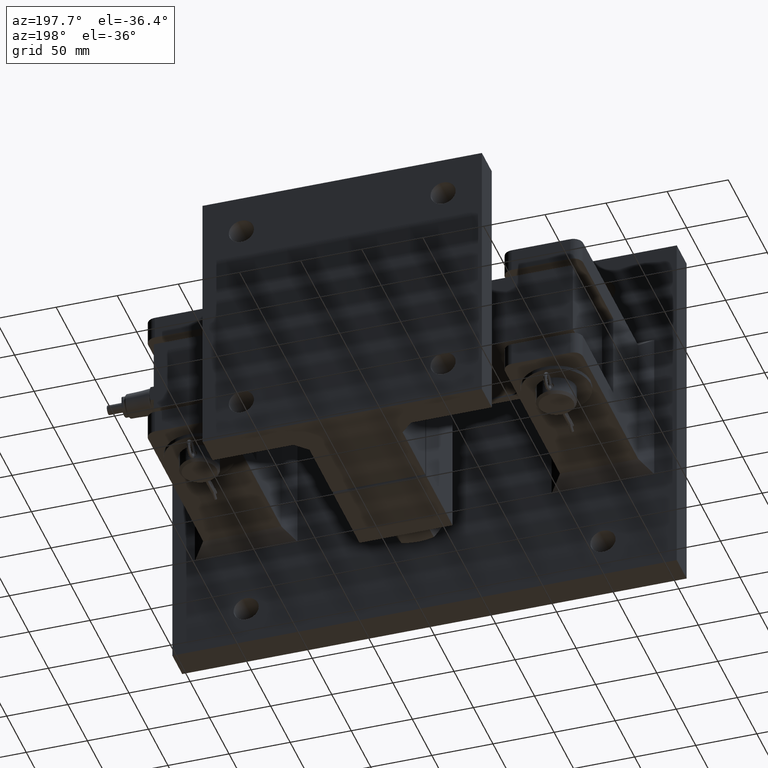
[diagram: clean part render]
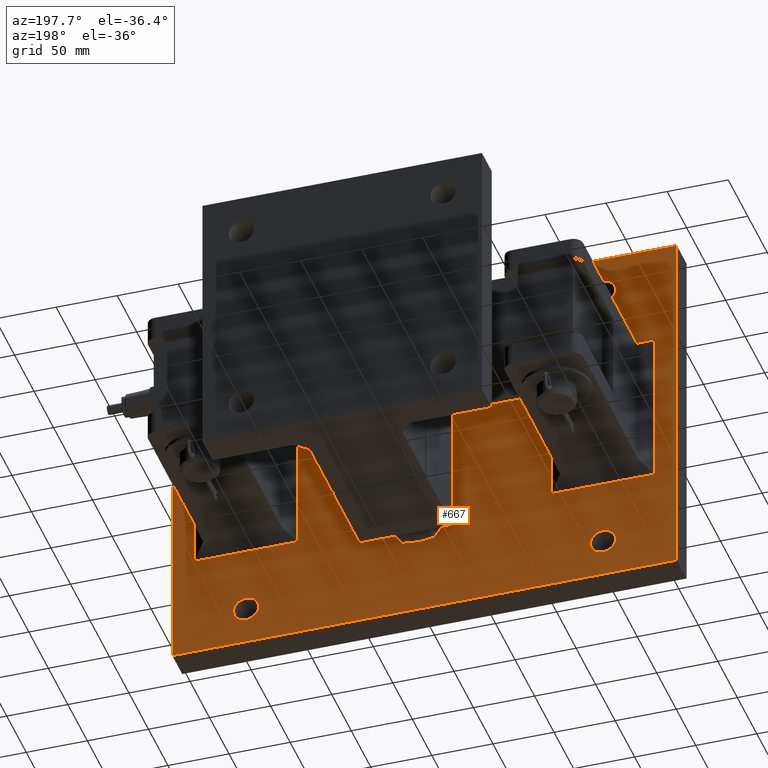
[diagram: same view with one face highlighted and labeled with its STEP entity id]
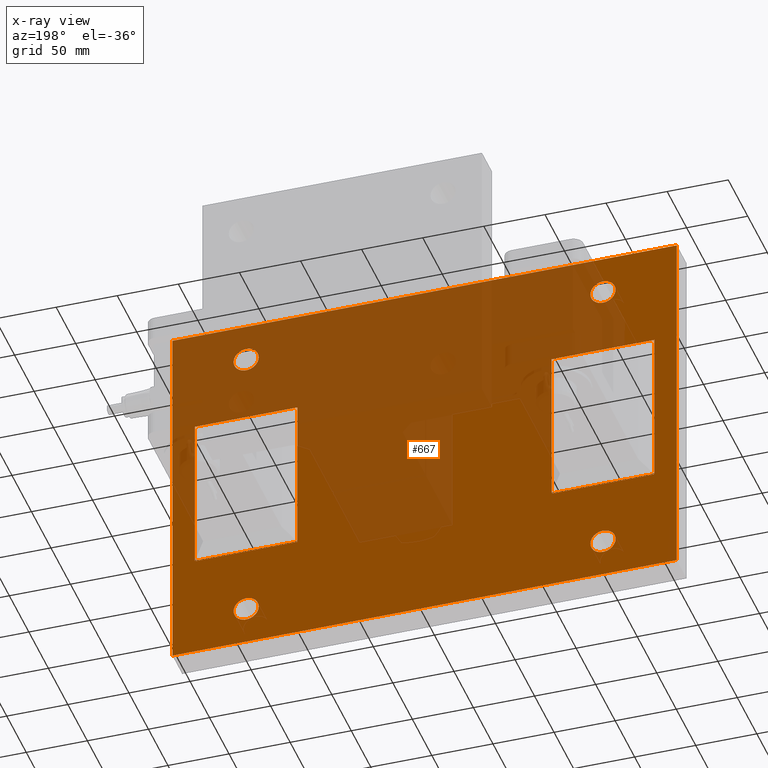
[diagram: x-ray of the same camera — body ghosted, the highlighted face saturated]
A machine part, auxiliary view. The second image highlights one B-rep face of the part: STEP entity #667.
The next image is the same camera in x-ray: the body ghosted, the highlighted face saturated — about 50% of this face is hidden behind the body in this view.
In plain terms, the highlighted planar face has unit normal (0, 1, 0).
Its self-contained STEP definition (entity closure, byte-faithful):
#95 = DIRECTION ( 'NONE',  ( 0.000000000000000000, 0.000000000000000000, -1.000000000000000000 ) ) ;
#103 = VECTOR ( 'NONE', #10947, 1000.000000000000000 ) ;
#149 = CARTESIAN_POINT ( 'NONE',  ( 206.4000000000000057, 25.39999999999999858, -152.4000000000000057 ) ) ;
#224 = ORIENTED_EDGE ( 'NONE', *, *, #10014, .F. ) ;
#237 = VECTOR ( 'NONE', #6885, 1000.000000000000000 ) ;
#295 = DIRECTION ( 'NONE',  ( -1.000000000000000000, -3.368395098984090196E-16, 0.000000000000000000 ) ) ;
#377 = DIRECTION ( 'NONE',  ( -0.000000000000000000, -0.000000000000000000, -1.000000000000000000 ) ) ;
#380 = EDGE_CURVE ( 'NONE', #5379, #2966, #6100, .T. ) ;
#583 = VERTEX_POINT ( 'NONE', #4763 ) ;
#621 = DIRECTION ( 'NONE',  ( -1.845450506358305572E-16, 1.000000000000000000, 0.000000000000000000 ) ) ;
#667 = ADVANCED_FACE ( 'NONE', ( #6654, #5704, #5757, #10892, #10775, #8241, #7492 ), #9128, .T. ) ;
#707 = ORIENTED_EDGE ( 'NONE', *, *, #3075, .T. ) ;
#738 = ORIENTED_EDGE ( 'NONE', *, *, #4347, .T. ) ;
#794 = AXIS2_PLACEMENT_3D ( 'NONE', #10143, #1822, #3394 ) ;
#796 = ORIENTED_EDGE ( 'NONE', *, *, #7504, .T. ) ;
#887 = CARTESIAN_POINT ( 'NONE',  ( 0.000000000000000000, 25.39999999999999858, 152.4000000000000057 ) ) ;
#1104 = CARTESIAN_POINT ( 'NONE',  ( -206.4000000000000057, 25.39999999999999858, -152.4000000000000057 ) ) ;
#1457 = DIRECTION ( 'NONE',  ( -1.000000000000000000, -3.368395098984090196E-16, 0.000000000000000000 ) ) ;
#1470 = AXIS2_PLACEMENT_3D ( 'NONE', #7460, #9101, #5776 ) ;
#1480 = VERTEX_POINT ( 'NONE', #5811 ) ;
#1692 = VERTEX_POINT ( 'NONE', #2502 ) ;
#1804 = VERTEX_POINT ( 'NONE', #10535 ) ;
#1822 = DIRECTION ( 'NONE',  ( -1.845450506358305572E-16, 1.000000000000000000, 0.000000000000000000 ) ) ;
#1845 = DIRECTION ( 'NONE',  ( 0.000000000000000000, 0.000000000000000000, 1.000000000000000000 ) ) ;
#1866 = EDGE_CURVE ( 'NONE', #8576, #1804, #6854, .T. ) ;
#2045 = VERTEX_POINT ( 'NONE', #10685 ) ;
#2078 = VERTEX_POINT ( 'NONE', #3764 ) ;
#2264 = ORIENTED_EDGE ( 'NONE', *, *, #8739, .F. ) ;
#2321 = VERTEX_POINT ( 'NONE', #10393 ) ;
#2502 = CARTESIAN_POINT ( 'NONE',  ( 135.7000000000000171, 25.40000000000002345, 120.6499999999999915 ) ) ;
#2594 = EDGE_LOOP ( 'NONE', ( #6322, #9320 ) ) ;
#2662 = VERTEX_POINT ( 'NONE', #10250 ) ;
#2663 = VERTEX_POINT ( 'NONE', #5018 ) ;
#2718 = CARTESIAN_POINT ( 'NONE',  ( 103.9999999999999432, 25.39999999999999858, -65.00000000000000000 ) ) ;
#2758 = CIRCLE ( 'NONE', #10650, 10.30000000000000426 ) ;
#2769 = DIRECTION ( 'NONE',  ( -1.000000000000000000, 0.000000000000000000, 0.000000000000000000 ) ) ;
#2787 = EDGE_CURVE ( 'NONE', #9227, #2078, #8977, .T. ) ;
#2834 = CARTESIAN_POINT ( 'NONE',  ( -145.9999999999999716, 25.39999999999997016, 120.6500000000000341 ) ) ;
#2862 = EDGE_LOOP ( 'NONE', ( #6244, #738, #8975, #3558 ) ) ;
#2910 = VECTOR ( 'NONE', #7000, 1000.000000000000000 ) ;
#2966 = VERTEX_POINT ( 'NONE', #6418 ) ;
#2967 = ORIENTED_EDGE ( 'NONE', *, *, #7095, .T. ) ;
#3061 = EDGE_LOOP ( 'NONE', ( #9724, #224, #8998, #796 ) ) ;
#3071 = CARTESIAN_POINT ( 'NONE',  ( 0.000000000000000000, 25.39999999999999858, -65.00000000000000000 ) ) ;
#3075 = EDGE_CURVE ( 'NONE', #2966, #2663, #4169, .T. ) ;
#3089 = CIRCLE ( 'NONE', #1470, 10.30000000000000426 ) ;
#3186 = CARTESIAN_POINT ( 'NONE',  ( 0.000000000000000000, 25.39999999999999858, 152.4000000000000057 ) ) ;
#3217 = CARTESIAN_POINT ( 'NONE',  ( -188.0000000000000000, 25.39999999999999858, -65.00000000000000000 ) ) ;
#3275 = VECTOR ( 'NONE', #377, 1000.000000000000000 ) ;
#3311 = EDGE_CURVE ( 'NONE', #583, #9196, #4341, .T. ) ;
#3360 = LINE ( 'NONE', #887, #237 ) ;
#3368 = LINE ( 'NONE', #10218, #5312 ) ;
#3394 = DIRECTION ( 'NONE',  ( -1.000000000000000000, -3.368395098984090196E-16, 0.000000000000000000 ) ) ;
#3463 = AXIS2_PLACEMENT_3D ( 'NONE', #7047, #6545, #5584 ) ;
#3466 = LINE ( 'NONE', #5203, #7156 ) ;
#3479 = EDGE_CURVE ( 'NONE', #6741, #2321, #3089, .T. ) ;
#3550 = CARTESIAN_POINT ( 'NONE',  ( 206.4000000000000057, 25.39999999999999858, 152.4000000000000057 ) ) ;
#3558 = ORIENTED_EDGE ( 'NONE', *, *, #1866, .T. ) ;
#3568 = DIRECTION ( 'NONE',  ( -1.000000000000000000, -3.368395098984090196E-16, 0.000000000000000000 ) ) ;
#3748 = CARTESIAN_POINT ( 'NONE',  ( -103.9999999999999432, 25.39999999999999858, 55.00000000000000000 ) ) ;
#3764 = CARTESIAN_POINT ( 'NONE',  ( -156.2999999999999545, 25.39999999999996660, 120.6500000000000341 ) ) ;
#3985 = EDGE_CURVE ( 'NONE', #2662, #2045, #3360, .T. ) ;
#4136 = AXIS2_PLACEMENT_3D ( 'NONE', #2834, #5354, #3568 ) ;
#4169 = LINE ( 'NONE', #7523, #8995 ) ;
#4197 = CIRCLE ( 'NONE', #794, 10.30000000000000426 ) ;
#4226 = CARTESIAN_POINT ( 'NONE',  ( -178.0000000000000000, 25.39999999999999858, 65.00000000000000000 ) ) ;
#4341 = CIRCLE ( 'NONE', #10622, 10.30000000000000426 ) ;
#4347 = EDGE_CURVE ( 'NONE', #5862, #1480, #6486, .T. ) ;
#4424 = CIRCLE ( 'NONE', #9083, 10.30000000000000426 ) ;
#4430 = VERTEX_POINT ( 'NONE', #8564 ) ;
#4435 = DIRECTION ( 'NONE',  ( 0.000000000000000000, 0.000000000000000000, -1.000000000000000000 ) ) ;
#4540 = DIRECTION ( 'NONE',  ( -1.845450506358305572E-16, 1.000000000000000000, 0.000000000000000000 ) ) ;
#4763 = CARTESIAN_POINT ( 'NONE',  ( 156.2999999999999829, 25.40000000000003055, -120.6500000000000057 ) ) ;
#4889 = EDGE_LOOP ( 'NONE', ( #6592, #2264 ) ) ;
#5018 = CARTESIAN_POINT ( 'NONE',  ( 103.9999999999999432, 25.39999999999999858, 65.00000000000000000 ) ) ;
#5024 = EDGE_LOOP ( 'NONE', ( #6551, #5970 ) ) ;
#5158 = CARTESIAN_POINT ( 'NONE',  ( 188.0000000000000000, 25.39999999999999858, 152.4000000000000057 ) ) ;
#5203 = CARTESIAN_POINT ( 'NONE',  ( -188.0000000000000000, 25.39999999999999858, -55.00000000000000000 ) ) ;
#5312 = VECTOR ( 'NONE', #4435, 1000.000000000000000 ) ;
#5347 = VERTEX_POINT ( 'NONE', #149 ) ;
#5354 = DIRECTION ( 'NONE',  ( -1.845450506358305572E-16, 1.000000000000000000, 0.000000000000000000 ) ) ;
#5379 = VERTEX_POINT ( 'NONE', #8955 ) ;
#5456 = DIRECTION ( 'NONE',  ( -1.845450506358305572E-16, 1.000000000000000000, 0.000000000000000000 ) ) ;
#5584 = DIRECTION ( 'NONE',  ( -1.000000000000000000, -3.368395098984090196E-16, 0.000000000000000000 ) ) ;
#5703 = VERTEX_POINT ( 'NONE', #2718 ) ;
#5704 = FACE_BOUND ( 'NONE', #2862, .T. ) ;
#5757 = FACE_BOUND ( 'NONE', #2594, .T. ) ;
#5776 = DIRECTION ( 'NONE',  ( -1.000000000000000000, -3.368395098984090196E-16, 0.000000000000000000 ) ) ;
#5811 = CARTESIAN_POINT ( 'NONE',  ( -103.9999999999999432, 25.39999999999999858, -65.00000000000000000 ) ) ;
#5848 = CARTESIAN_POINT ( 'NONE',  ( -156.2999999999999829, 25.39999999999996660, -120.6500000000000057 ) ) ;
#5862 = VERTEX_POINT ( 'NONE', #3217 ) ;
#5949 = DIRECTION ( 'NONE',  ( -0.000000000000000000, -0.000000000000000000, -1.000000000000000000 ) ) ;
#5970 = ORIENTED_EDGE ( 'NONE', *, *, #7795, .F. ) ;
#5991 = ORIENTED_EDGE ( 'NONE', *, *, #7906, .T. ) ;
#6066 = CARTESIAN_POINT ( 'NONE',  ( 146.0000000000000284, 25.40000000000002700, 120.6499999999999915 ) ) ;
#6100 = LINE ( 'NONE', #5158, #8994 ) ;
#6120 = AXIS2_PLACEMENT_3D ( 'NONE', #3186, #10942, #9022 ) ;
#6145 = EDGE_CURVE ( 'NONE', #8388, #5347, #7393, .T. ) ;
#6244 = ORIENTED_EDGE ( 'NONE', *, *, #10738, .T. ) ;
#6322 = ORIENTED_EDGE ( 'NONE', *, *, #9689, .F. ) ;
#6360 = AXIS2_PLACEMENT_3D ( 'NONE', #7128, #7811, #10406 ) ;
#6418 = CARTESIAN_POINT ( 'NONE',  ( 188.0000000000000000, 25.39999999999999858, 65.00000000000000000 ) ) ;
#6486 = LINE ( 'NONE', #3071, #10279 ) ;
#6545 = DIRECTION ( 'NONE',  ( -1.845450506358305572E-16, 1.000000000000000000, 0.000000000000000000 ) ) ;
#6551 = ORIENTED_EDGE ( 'NONE', *, *, #3479, .F. ) ;
#6592 = ORIENTED_EDGE ( 'NONE', *, *, #8979, .F. ) ;
#6654 = FACE_BOUND ( 'NONE', #6998, .T. ) ;
#6741 = VERTEX_POINT ( 'NONE', #5848 ) ;
#6795 = ORIENTED_EDGE ( 'NONE', *, *, #380, .T. ) ;
#6854 = LINE ( 'NONE', #4226, #9749 ) ;
#6885 = DIRECTION ( 'NONE',  ( 1.000000000000000000, 0.000000000000000000, 0.000000000000000000 ) ) ;
#6998 = EDGE_LOOP ( 'NONE', ( #5991, #2967, #6795, #707 ) ) ;
#7000 = DIRECTION ( 'NONE',  ( 0.000000000000000000, 0.000000000000000000, 1.000000000000000000 ) ) ;
#7047 = CARTESIAN_POINT ( 'NONE',  ( 146.0000000000000284, 25.40000000000002700, 120.6499999999999915 ) ) ;
#7095 = EDGE_CURVE ( 'NONE', #5703, #5379, #8026, .T. ) ;
#7128 = CARTESIAN_POINT ( 'NONE',  ( -145.9999999999999716, 25.39999999999997016, 120.6500000000000341 ) ) ;
#7156 = VECTOR ( 'NONE', #95, 1000.000000000000000 ) ;
#7336 = CARTESIAN_POINT ( 'NONE',  ( -0.000000000000000000, 25.39999999999999858, -152.4000000000000057 ) ) ;
#7393 = LINE ( 'NONE', #7336, #103 ) ;
#7460 = CARTESIAN_POINT ( 'NONE',  ( -146.0000000000000000, 25.39999999999997016, -120.6500000000000057 ) ) ;
#7492 = FACE_OUTER_BOUND ( 'NONE', #3061, .T. ) ;
#7501 = ORIENTED_EDGE ( 'NONE', *, *, #9191, .F. ) ;
#7504 = EDGE_CURVE ( 'NONE', #2045, #5347, #10230, .T. ) ;
#7523 = CARTESIAN_POINT ( 'NONE',  ( 113.9999999999999858, 25.39999999999999858, 65.00000000000000000 ) ) ;
#7587 = CARTESIAN_POINT ( 'NONE',  ( -103.9999999999999432, 25.39999999999999858, 65.00000000000000000 ) ) ;
#7795 = EDGE_CURVE ( 'NONE', #2321, #6741, #4424, .T. ) ;
#7811 = DIRECTION ( 'NONE',  ( -1.845450506358305572E-16, 1.000000000000000000, 0.000000000000000000 ) ) ;
#7906 = EDGE_CURVE ( 'NONE', #2663, #5703, #3368, .T. ) ;
#8026 = LINE ( 'NONE', #9829, #10723 ) ;
#8241 = FACE_BOUND ( 'NONE', #5024, .T. ) ;
#8388 = VERTEX_POINT ( 'NONE', #1104 ) ;
#8557 = CARTESIAN_POINT ( 'NONE',  ( -135.6999999999999602, 25.39999999999997371, 120.6500000000000341 ) ) ;
#8564 = CARTESIAN_POINT ( 'NONE',  ( 156.3000000000000114, 25.40000000000003055, 120.6499999999999915 ) ) ;
#8576 = VERTEX_POINT ( 'NONE', #7587 ) ;
#8739 = EDGE_CURVE ( 'NONE', #4430, #1692, #2758, .T. ) ;
#8955 = CARTESIAN_POINT ( 'NONE',  ( 188.0000000000000000, 25.39999999999999858, -65.00000000000000000 ) ) ;
#8975 = ORIENTED_EDGE ( 'NONE', *, *, #9968, .T. ) ;
#8977 = CIRCLE ( 'NONE', #4136, 10.30000000000000426 ) ;
#8979 = EDGE_CURVE ( 'NONE', #1692, #4430, #9199, .T. ) ;
#8994 = VECTOR ( 'NONE', #1845, 1000.000000000000000 ) ;
#8995 = VECTOR ( 'NONE', #9114, 1000.000000000000000 ) ;
#8998 = ORIENTED_EDGE ( 'NONE', *, *, #3985, .T. ) ;
#9022 = DIRECTION ( 'NONE',  ( 0.000000000000000000, -0.000000000000000000, 1.000000000000000000 ) ) ;
#9083 = AXIS2_PLACEMENT_3D ( 'NONE', #10168, #621, #1457 ) ;
#9101 = DIRECTION ( 'NONE',  ( -1.845450506358305572E-16, 1.000000000000000000, 0.000000000000000000 ) ) ;
#9114 = DIRECTION ( 'NONE',  ( -1.000000000000000000, 0.000000000000000000, 0.000000000000000000 ) ) ;
#9128 = PLANE ( 'NONE',  #6120 ) ;
#9191 = EDGE_CURVE ( 'NONE', #9196, #583, #4197, .T. ) ;
#9196 = VERTEX_POINT ( 'NONE', #9285 ) ;
#9199 = CIRCLE ( 'NONE', #3463, 10.30000000000000426 ) ;
#9227 = VERTEX_POINT ( 'NONE', #8557 ) ;
#9285 = CARTESIAN_POINT ( 'NONE',  ( 135.6999999999999886, 25.40000000000002345, -120.6500000000000057 ) ) ;
#9320 = ORIENTED_EDGE ( 'NONE', *, *, #2787, .F. ) ;
#9507 = EDGE_LOOP ( 'NONE', ( #7501, #9608 ) ) ;
#9596 = LINE ( 'NONE', #10666, #3275 ) ;
#9608 = ORIENTED_EDGE ( 'NONE', *, *, #3311, .F. ) ;
#9689 = EDGE_CURVE ( 'NONE', #2078, #9227, #10137, .T. ) ;
#9724 = ORIENTED_EDGE ( 'NONE', *, *, #6145, .F. ) ;
#9749 = VECTOR ( 'NONE', #2769, 1000.000000000000000 ) ;
#9819 = VECTOR ( 'NONE', #5949, 1000.000000000000000 ) ;
#9829 = CARTESIAN_POINT ( 'NONE',  ( 0.000000000000000000, 25.39999999999999858, -65.00000000000000000 ) ) ;
#9927 = DIRECTION ( 'NONE',  ( 1.000000000000000000, 0.000000000000000000, 0.000000000000000000 ) ) ;
#9968 = EDGE_CURVE ( 'NONE', #1480, #8576, #10551, .T. ) ;
#10014 = EDGE_CURVE ( 'NONE', #2662, #8388, #9596, .T. ) ;
#10137 = CIRCLE ( 'NONE', #6360, 10.30000000000000426 ) ;
#10143 = CARTESIAN_POINT ( 'NONE',  ( 146.0000000000000000, 25.40000000000002700, -120.6500000000000057 ) ) ;
#10168 = CARTESIAN_POINT ( 'NONE',  ( -146.0000000000000000, 25.39999999999997016, -120.6500000000000057 ) ) ;
#10218 = CARTESIAN_POINT ( 'NONE',  ( 103.9999999999999432, 25.39999999999999858, 152.4000000000000057 ) ) ;
#10230 = LINE ( 'NONE', #3550, #9819 ) ;
#10250 = CARTESIAN_POINT ( 'NONE',  ( -206.4000000000000057, 25.39999999999999858, 152.4000000000000057 ) ) ;
#10279 = VECTOR ( 'NONE', #9927, 1000.000000000000000 ) ;
#10393 = CARTESIAN_POINT ( 'NONE',  ( -135.6999999999999886, 25.39999999999997371, -120.6500000000000057 ) ) ;
#10406 = DIRECTION ( 'NONE',  ( -1.000000000000000000, -3.368395098984090196E-16, 0.000000000000000000 ) ) ;
#10519 = CARTESIAN_POINT ( 'NONE',  ( 146.0000000000000000, 25.40000000000002700, -120.6500000000000057 ) ) ;
#10535 = CARTESIAN_POINT ( 'NONE',  ( -188.0000000000000000, 25.39999999999999858, 65.00000000000000000 ) ) ;
#10551 = LINE ( 'NONE', #3748, #2910 ) ;
#10610 = DIRECTION ( 'NONE',  ( 1.000000000000000000, 0.000000000000000000, 0.000000000000000000 ) ) ;
#10622 = AXIS2_PLACEMENT_3D ( 'NONE', #10519, #5456, #295 ) ;
#10650 = AXIS2_PLACEMENT_3D ( 'NONE', #6066, #4540, #10671 ) ;
#10666 = CARTESIAN_POINT ( 'NONE',  ( -206.4000000000000057, 25.39999999999999858, 152.4000000000000057 ) ) ;
#10671 = DIRECTION ( 'NONE',  ( -1.000000000000000000, -3.368395098984090196E-16, 0.000000000000000000 ) ) ;
#10685 = CARTESIAN_POINT ( 'NONE',  ( 206.4000000000000057, 25.39999999999999858, 152.4000000000000057 ) ) ;
#10723 = VECTOR ( 'NONE', #10610, 1000.000000000000000 ) ;
#10738 = EDGE_CURVE ( 'NONE', #1804, #5862, #3466, .T. ) ;
#10775 = FACE_BOUND ( 'NONE', #9507, .T. ) ;
#10892 = FACE_BOUND ( 'NONE', #4889, .T. ) ;
#10942 = DIRECTION ( 'NONE',  ( 0.000000000000000000, 1.000000000000000000, 0.000000000000000000 ) ) ;
#10947 = DIRECTION ( 'NONE',  ( 1.000000000000000000, 0.000000000000000000, 0.000000000000000000 ) ) ;